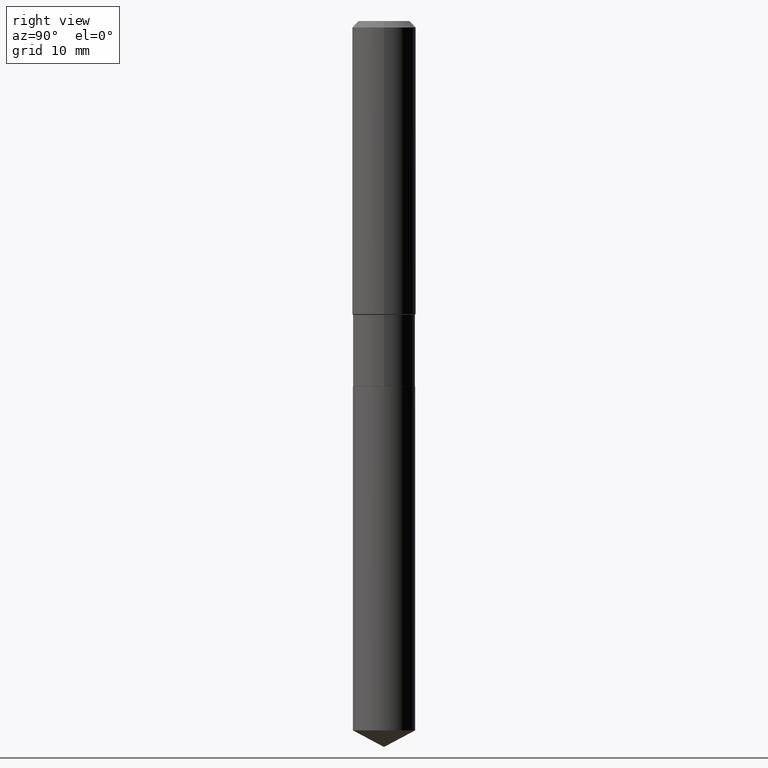
[diagram: clean part render]
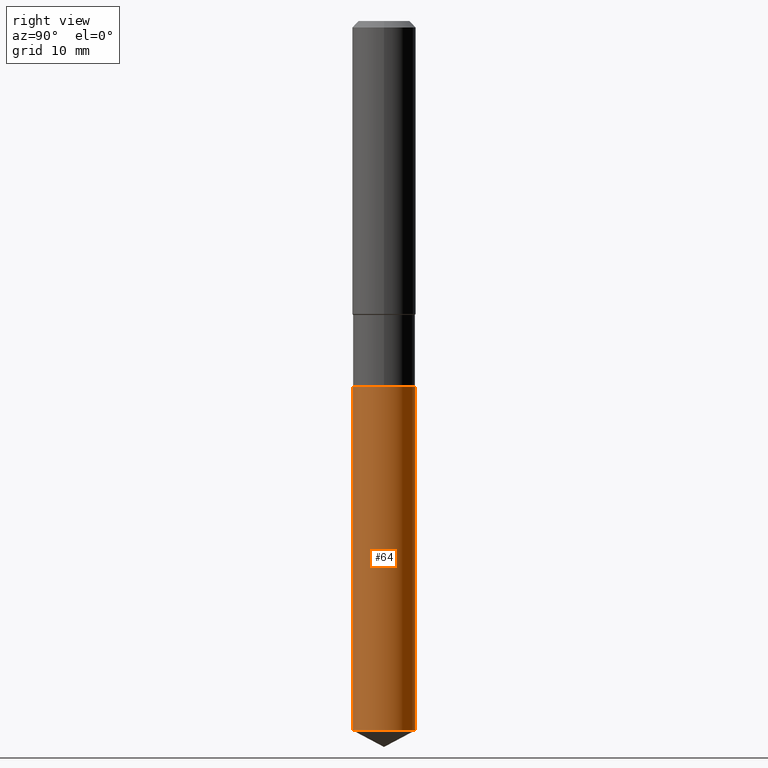
[diagram: same view with one face highlighted and labeled with its STEP entity id]
A machine part, right view. The second image highlights one B-rep face of the part: STEP entity #64.
In plain terms, the highlighted cylindrical surface (edge-blend (fillet) strip) has radius 3.9002 mm, axis along (-0, 0, 1).
Its self-contained STEP definition (entity closure, byte-faithful):
#34 = ORIENTED_EDGE ( 'NONE', *, *, #274, .T. ) ;
#37 = AXIS2_PLACEMENT_3D ( 'NONE', #313, #350, #99 ) ;
#41 = CYLINDRICAL_SURFACE ( 'NONE', #191, 0.1535499999999999921 ) ;
#64 = ADVANCED_FACE ( 'NONE', ( #266 ), #41, .T. ) ;
#70 = EDGE_CURVE ( 'NONE', #416, #275, #143, .T. ) ;
#77 = ORIENTED_EDGE ( 'NONE', *, *, #70, .F. ) ;
#79 = DIRECTION ( 'NONE',  ( -2.445434564979098040E-29, 3.491530374199081444E-15, 1.000000000000000000 ) ) ;
#96 = CARTESIAN_POINT ( 'NONE',  ( 1.091038370759719765E-15, 0.1535499999999937193, -1.803200000000000580 ) ) ;
#99 = DIRECTION ( 'NONE',  ( -6.982962677686265133E-15, -1.000000000000000000, 3.558252026915353702E-15 ) ) ;
#121 = CARTESIAN_POINT ( 'NONE',  ( -1.072233919158681970E-15, -0.1535500000000062926, -1.803199999999999470 ) ) ;
#124 = DIRECTION ( 'NONE',  ( -2.445434564979098040E-29, 3.491530374199081444E-15, 1.000000000000000000 ) ) ;
#127 = DIRECTION ( 'NONE',  ( -6.982962677686266711E-15, -1.000000000000000000, 3.558252026915354491E-15 ) ) ;
#129 = DIRECTION ( 'NONE',  ( -2.445434564979098040E-29, 3.491530374199081050E-15, 1.000000000000000000 ) ) ;
#137 = CARTESIAN_POINT ( 'NONE',  ( 1.091038370759719173E-15, 0.1535499999999877796, -3.501056016768380630 ) ) ;
#143 = CIRCLE ( 'NONE', #422, 0.1535499999999999921 ) ;
#151 = LINE ( 'NONE', #121, #460 ) ;
#156 = LINE ( 'NONE', #196, #298 ) ;
#158 = CARTESIAN_POINT ( 'NONE',  ( 4.409669351313038346E-29, -6.295839150201959750E-15, -1.803200000000000136 ) ) ;
#160 = EDGE_CURVE ( 'NONE', #360, #275, #156, .T. ) ;
#191 = AXIS2_PLACEMENT_3D ( 'NONE', #158, #129, #127 ) ;
#196 = CARTESIAN_POINT ( 'NONE',  ( 1.091038370759677758E-15, 0.1535499999999936915, -1.803200000000000580 ) ) ;
#200 = ORIENTED_EDGE ( 'NONE', *, *, #201, .F. ) ;
#201 = EDGE_CURVE ( 'NONE', #314, #416, #151, .T. ) ;
#206 = EDGE_LOOP ( 'NONE', ( #34, #215, #77, #200 ) ) ;
#215 = ORIENTED_EDGE ( 'NONE', *, *, #160, .T. ) ;
#236 = CARTESIAN_POINT ( 'NONE',  ( 4.409669351313038346E-29, -6.295839150201959750E-15, -1.803200000000000136 ) ) ;
#266 = FACE_OUTER_BOUND ( 'NONE', #206, .T. ) ;
#274 = EDGE_CURVE ( 'NONE', #314, #360, #481, .T. ) ;
#275 = VERTEX_POINT ( 'NONE', #96 ) ;
#288 = CARTESIAN_POINT ( 'NONE',  ( -1.072233919158640357E-15, -0.1535500000000122045, -3.501056016768379742 ) ) ;
#298 = VECTOR ( 'NONE', #79, 39.37007874015748143 ) ;
#299 = DIRECTION ( 'NONE',  ( -6.982962677686266711E-15, -1.000000000000000000, 3.558252026915354491E-15 ) ) ;
#313 = CARTESIAN_POINT ( 'NONE',  ( 8.561665141076166263E-29, -1.222395500376542406E-14, -3.501056016768380186 ) ) ;
#314 = VERTEX_POINT ( 'NONE', #288 ) ;
#350 = DIRECTION ( 'NONE',  ( -2.445434564979098040E-29, 3.491530374199081050E-15, 1.000000000000000000 ) ) ;
#360 = VERTEX_POINT ( 'NONE', #137 ) ;
#416 = VERTEX_POINT ( 'NONE', #425 ) ;
#422 = AXIS2_PLACEMENT_3D ( 'NONE', #236, #463, #299 ) ;
#425 = CARTESIAN_POINT ( 'NONE',  ( -1.072233919158681970E-15, -0.1535500000000062926, -1.803199999999999470 ) ) ;
#460 = VECTOR ( 'NONE', #124, 39.37007874015748143 ) ;
#463 = DIRECTION ( 'NONE',  ( -2.445434564979098040E-29, 3.491530374199081050E-15, 1.000000000000000000 ) ) ;
#481 = CIRCLE ( 'NONE', #37, 0.1535500000000000198 ) ;